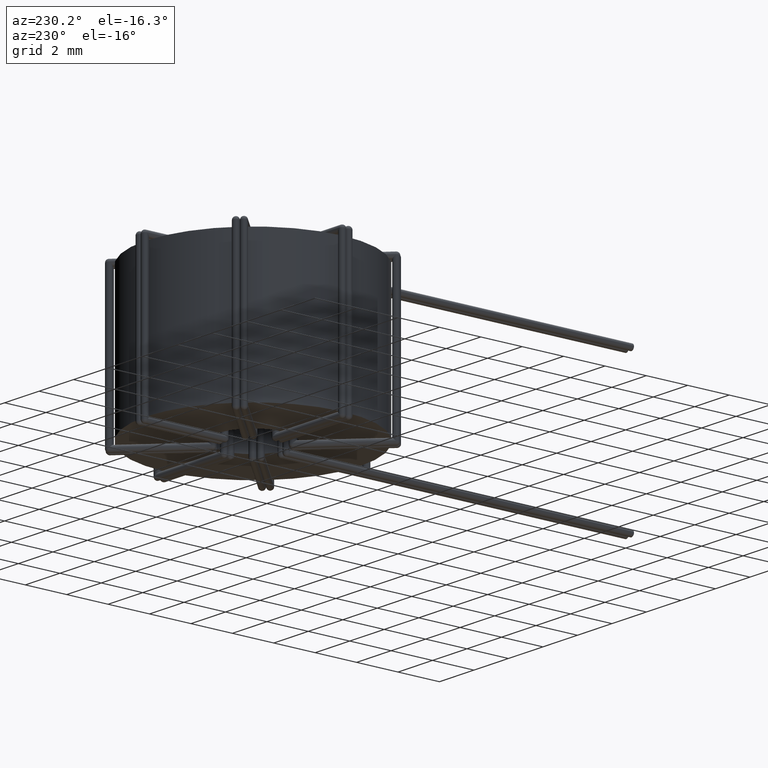
[diagram: clean part render]
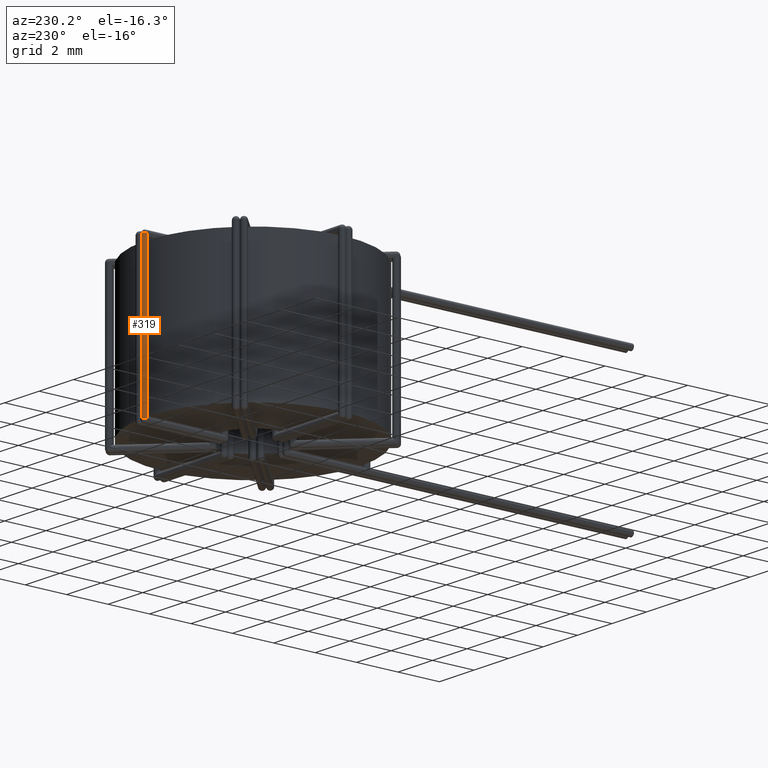
[diagram: same view with one face highlighted and labeled with its STEP entity id]
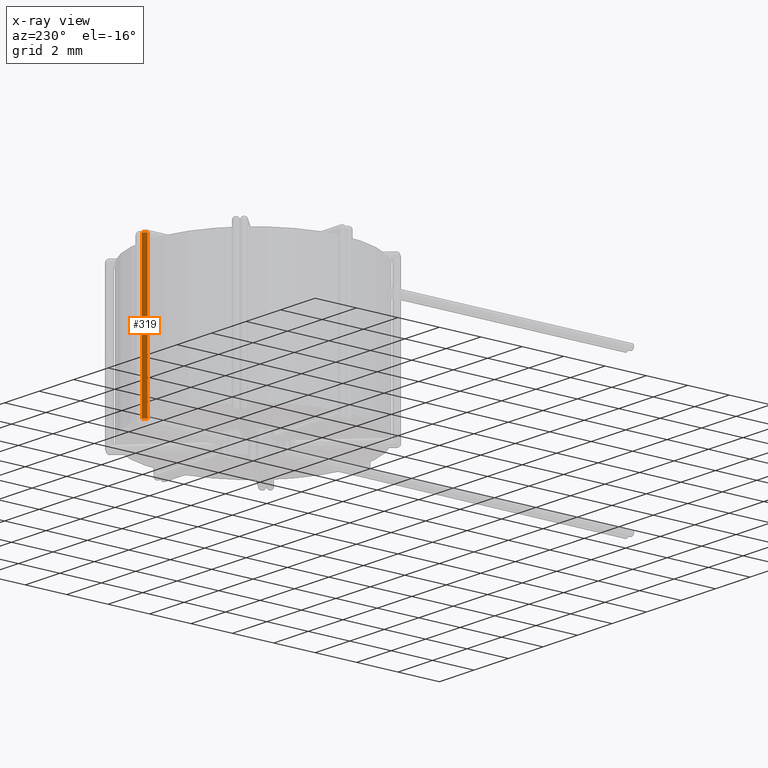
[diagram: x-ray of the same camera — body ghosted, the highlighted face saturated]
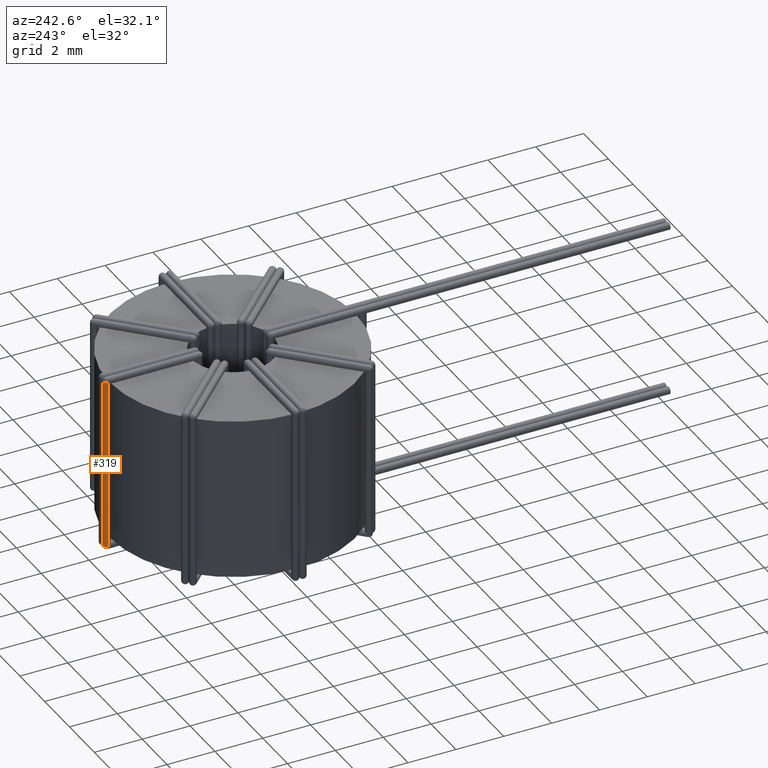
[diagram: same view with one face highlighted and labeled with its STEP entity id]
A machine part, auxiliary view. The second image highlights one B-rep face of the part: STEP entity #319.
The next image is the same camera in x-ray: the body ghosted, the highlighted face saturated — about 0% of this face is hidden behind the body in this view.
A second angle (auxiliary view) of the same face is appended — the face is thin or edge-on in the first view.
In plain terms, the highlighted cylindrical surface (edge-blend (fillet) strip) has radius 0.15 mm, axis along (0, -0, 1).
Its self-contained STEP definition (entity closure, byte-faithful):
#319 = ADVANCED_FACE ( 'NONE', ( #12477 ), #13402, .T. ) ;
#455 = DIRECTION ( 'NONE',  ( 1.048062100069321200E-014, -1.000000000000000000, 0.0000000000000000000 ) ) ;
#1383 = CARTESIAN_POINT ( 'NONE',  ( -0.3000000000000560000, 5.349999999999996100, 7.000000000000000000 ) ) ;
#1475 = CARTESIAN_POINT ( 'NONE',  ( -0.1500000000000575900, 5.499999999999999100, -0.1999999999999995100 ) ) ;
#1555 = DIRECTION ( 'NONE',  ( -1.211350928885223300E-030, 1.156482317317871500E-016, -1.000000000000000000 ) ) ;
#1898 = VECTOR ( 'NONE', #1555, 1000.000000000000000 ) ;
#2185 = CIRCLE ( 'NONE', #3189, 0.1499999999999999700 ) ;
#2676 = VECTOR ( 'NONE', #5466, 1000.000000000000000 ) ;
#2750 = CARTESIAN_POINT ( 'NONE',  ( -0.1500000000000560100, 5.349999999999998800, -0.1999999999999995400 ) ) ;
#2775 = CARTESIAN_POINT ( 'NONE',  ( -0.1500000000000575900, 5.499999999999998200, 7.000000000000000000 ) ) ;
#3123 = AXIS2_PLACEMENT_3D ( 'NONE', #6529, #7805, #455 ) ;
#3128 = DIRECTION ( 'NONE',  ( -1.048062100069321200E-014, 1.000000000000000000, 1.807003620809174400E-016 ) ) ;
#3189 = AXIS2_PLACEMENT_3D ( 'NONE', #14218, #8615, #14482 ) ;
#3398 = EDGE_LOOP ( 'NONE', ( #5227, #9186, #8616, #15129 ) ) ;
#3458 = VERTEX_POINT ( 'NONE', #1475 ) ;
#3542 = AXIS2_PLACEMENT_3D ( 'NONE', #2750, #15032, #3128 ) ;
#5227 = ORIENTED_EDGE ( 'NONE', *, *, #15077, .F. ) ;
#5466 = DIRECTION ( 'NONE',  ( -1.211350928885223300E-030, 1.156482317317871500E-016, -1.000000000000000000 ) ) ;
#6529 = CARTESIAN_POINT ( 'NONE',  ( -0.1500000000000560100, 5.349999999999998800, -0.3499999999999995300 ) ) ;
#6549 = EDGE_CURVE ( 'NONE', #6668, #3458, #14645, .T. ) ;
#6668 = VERTEX_POINT ( 'NONE', #6707 ) ;
#6707 = CARTESIAN_POINT ( 'NONE',  ( -0.3000000000000560000, 5.349999999999997000, -0.1999999999999995400 ) ) ;
#7805 = DIRECTION ( 'NONE',  ( 1.211350928885223300E-030, -1.156482317317871500E-016, 1.000000000000000000 ) ) ;
#8615 = DIRECTION ( 'NONE',  ( 0.0000000000000000000, 0.0000000000000000000, 1.000000000000000000 ) ) ;
#8616 = ORIENTED_EDGE ( 'NONE', *, *, #6549, .F. ) ;
#8771 = LINE ( 'NONE', #13749, #1898 ) ;
#8944 = VERTEX_POINT ( 'NONE', #1383 ) ;
#9186 = ORIENTED_EDGE ( 'NONE', *, *, #15762, .T. ) ;
#10235 = CARTESIAN_POINT ( 'NONE',  ( -0.1500000000000575900, 5.499999999999999100, -0.3499999999999995300 ) ) ;
#10884 = LINE ( 'NONE', #10235, #2676 ) ;
#11066 = EDGE_CURVE ( 'NONE', #8944, #6668, #8771, .T. ) ;
#11519 = VERTEX_POINT ( 'NONE', #2775 ) ;
#12477 = FACE_OUTER_BOUND ( 'NONE', #3398, .T. ) ;
#13402 = CYLINDRICAL_SURFACE ( 'NONE', #3123, 0.1499999999999999700 ) ;
#13749 = CARTESIAN_POINT ( 'NONE',  ( -0.3000000000000560000, 5.349999999999997000, 6.187180397650613300E-016 ) ) ;
#14218 = CARTESIAN_POINT ( 'NONE',  ( -0.1500000000000560100, 5.349999999999997900, 7.000000000000000000 ) ) ;
#14482 = DIRECTION ( 'NONE',  ( 1.048062100069321200E-014, -1.000000000000000000, 0.0000000000000000000 ) ) ;
#14645 = CIRCLE ( 'NONE', #3542, 0.1499999999999999700 ) ;
#15032 = DIRECTION ( 'NONE',  ( -1.892735826383162200E-030, 1.807003620809174900E-016, -1.000000000000000000 ) ) ;
#15077 = EDGE_CURVE ( 'NONE', #11519, #8944, #2185, .T. ) ;
#15129 = ORIENTED_EDGE ( 'NONE', *, *, #11066, .F. ) ;
#15762 = EDGE_CURVE ( 'NONE', #11519, #3458, #10884, .T. ) ;